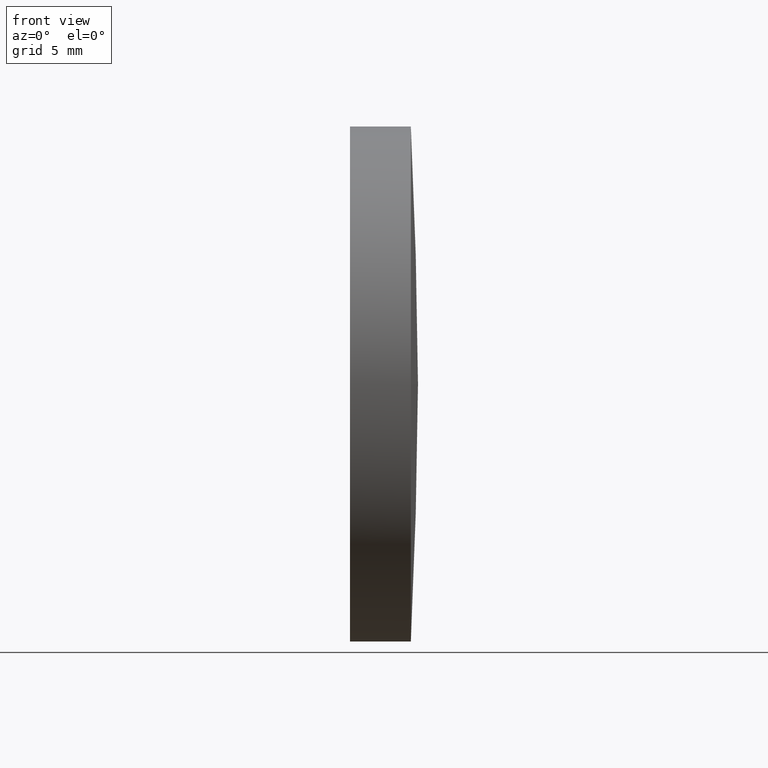
[diagram: clean part render]
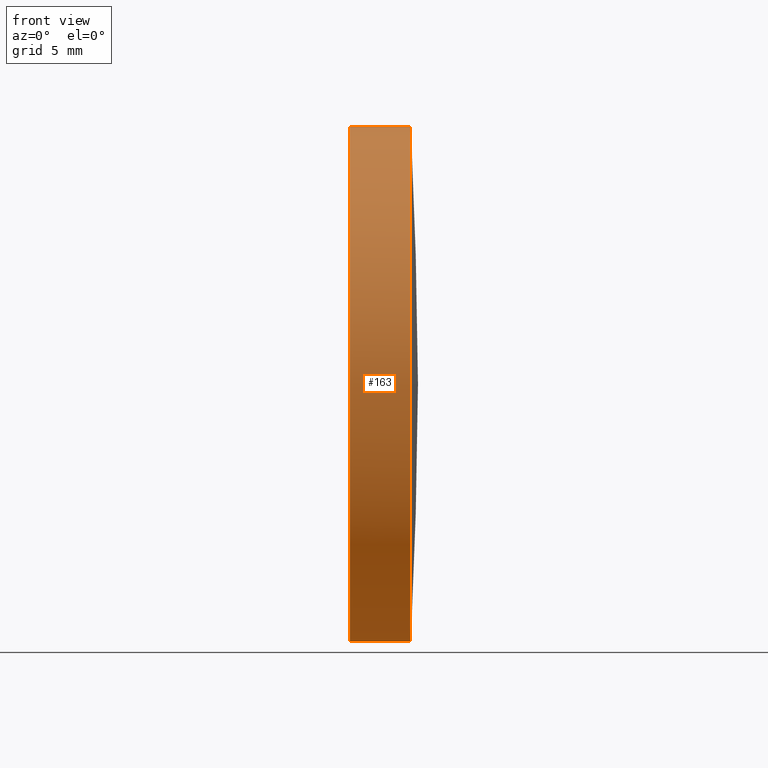
[diagram: same view with one face highlighted and labeled with its STEP entity id]
A machine part, front view. The second image highlights one B-rep face of the part: STEP entity #163.
In plain terms, the highlighted cylindrical surface (partial cylindrical patch) has radius 12.7 mm, axis along (-1, -0, -0).
Its self-contained STEP definition (entity closure, byte-faithful):
#8 = EDGE_CURVE ( 'NONE', #111, #83, #105, .T. ) ;
#9 = FACE_OUTER_BOUND ( 'NONE', #12, .T. ) ;
#11 = LINE ( 'NONE', #178, #101 ) ;
#12 = EDGE_LOOP ( 'NONE', ( #16, #179, #99, #58, #182 ) ) ;
#14 = DIRECTION ( 'NONE',  ( 0.0000000000000000000, 0.0000000000000000000, 1.000000000000000000 ) ) ;
#16 = ORIENTED_EDGE ( 'NONE', *, *, #20, .F. ) ;
#20 = EDGE_CURVE ( 'NONE', #111, #54, #86, .T. ) ;
#21 = CARTESIAN_POINT ( 'NONE',  ( 115.7736064308381300, 65.23355492641219700, 0.0000000000000000000 ) ) ;
#22 = DIRECTION ( 'NONE',  ( -1.000000000000000000, -0.0000000000000000000, -0.0000000000000000000 ) ) ;
#23 = AXIS2_PLACEMENT_3D ( 'NONE', #30, #22, #130 ) ;
#30 = CARTESIAN_POINT ( 'NONE',  ( 118.7739426674340100, 65.23355492641219700, 0.0000000000000000000 ) ) ;
#37 = AXIS2_PLACEMENT_3D ( 'NONE', #172, #128, #14 ) ;
#46 = CARTESIAN_POINT ( 'NONE',  ( 118.7739426674340100, 65.23355492641219700, 12.70000000000000300 ) ) ;
#54 = VERTEX_POINT ( 'NONE', #73 ) ;
#57 = AXIS2_PLACEMENT_3D ( 'NONE', #21, #65, #160 ) ;
#58 = ORIENTED_EDGE ( 'NONE', *, *, #183, .T. ) ;
#61 = DIRECTION ( 'NONE',  ( 0.0000000000000000000, 0.0000000000000000000, 1.000000000000000000 ) ) ;
#65 = DIRECTION ( 'NONE',  ( -1.000000000000000000, -0.0000000000000000000, -0.0000000000000000000 ) ) ;
#70 = VECTOR ( 'NONE', #139, 1000.000000000000000 ) ;
#73 = CARTESIAN_POINT ( 'NONE',  ( 115.7736064308381300, 65.23355492641219700, -12.70000000000000300 ) ) ;
#76 = VERTEX_POINT ( 'NONE', #94 ) ;
#80 = CIRCLE ( 'NONE', #57, 12.70000000000000300 ) ;
#83 = VERTEX_POINT ( 'NONE', #117 ) ;
#84 = DIRECTION ( 'NONE',  ( -1.000000000000000000, -0.0000000000000000000, -0.0000000000000000000 ) ) ;
#86 = LINE ( 'NONE', #104, #70 ) ;
#94 = CARTESIAN_POINT ( 'NONE',  ( 115.7736064308381300, 65.23355492641219700, 12.70000000000000300 ) ) ;
#99 = ORIENTED_EDGE ( 'NONE', *, *, #107, .T. ) ;
#101 = VECTOR ( 'NONE', #144, 1000.000000000000000 ) ;
#104 = CARTESIAN_POINT ( 'NONE',  ( 110.1653732284884500, 65.23355492641219700, -12.70000000000000300 ) ) ;
#105 = CIRCLE ( 'NONE', #37, 12.70000000000000300 ) ;
#107 = EDGE_CURVE ( 'NONE', #83, #141, #151, .T. ) ;
#111 = VERTEX_POINT ( 'NONE', #145 ) ;
#117 = CARTESIAN_POINT ( 'NONE',  ( 118.7739426674340300, 52.53355492641242800, 0.0000000000000000000 ) ) ;
#128 = DIRECTION ( 'NONE',  ( -1.000000000000000000, -0.0000000000000000000, -0.0000000000000000000 ) ) ;
#130 = DIRECTION ( 'NONE',  ( 0.0000000000000000000, 0.0000000000000000000, 1.000000000000000000 ) ) ;
#133 = EDGE_CURVE ( 'NONE', #54, #76, #80, .T. ) ;
#139 = DIRECTION ( 'NONE',  ( -1.000000000000000000, -0.0000000000000000000, -0.0000000000000000000 ) ) ;
#141 = VERTEX_POINT ( 'NONE', #46 ) ;
#144 = DIRECTION ( 'NONE',  ( -1.000000000000000000, -0.0000000000000000000, -0.0000000000000000000 ) ) ;
#145 = CARTESIAN_POINT ( 'NONE',  ( 118.7739426674340100, 65.23355492641219700, -12.70000000000000300 ) ) ;
#151 = CIRCLE ( 'NONE', #23, 12.70000000000000300 ) ;
#160 = DIRECTION ( 'NONE',  ( 0.0000000000000000000, 0.0000000000000000000, 1.000000000000000000 ) ) ;
#163 = ADVANCED_FACE ( 'NONE', ( #9 ), #185, .T. ) ;
#166 = CARTESIAN_POINT ( 'NONE',  ( 110.1653732284884500, 65.23355492641219700, 0.0000000000000000000 ) ) ;
#170 = AXIS2_PLACEMENT_3D ( 'NONE', #166, #84, #61 ) ;
#172 = CARTESIAN_POINT ( 'NONE',  ( 118.7739426674340100, 65.23355492641219700, 0.0000000000000000000 ) ) ;
#178 = CARTESIAN_POINT ( 'NONE',  ( 110.1653732284884500, 65.23355492641219700, 12.70000000000000300 ) ) ;
#179 = ORIENTED_EDGE ( 'NONE', *, *, #8, .T. ) ;
#182 = ORIENTED_EDGE ( 'NONE', *, *, #133, .F. ) ;
#183 = EDGE_CURVE ( 'NONE', #141, #76, #11, .T. ) ;
#185 = CYLINDRICAL_SURFACE ( 'NONE', #170, 12.70000000000000300 ) ;